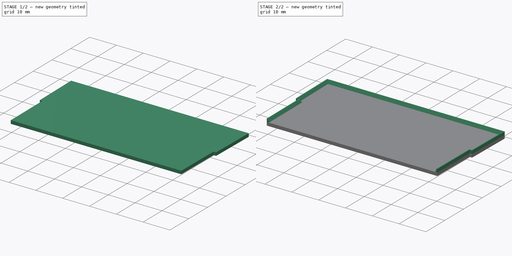
[diagram: build sequence overview — one tinted view per stage of 2, left to right]
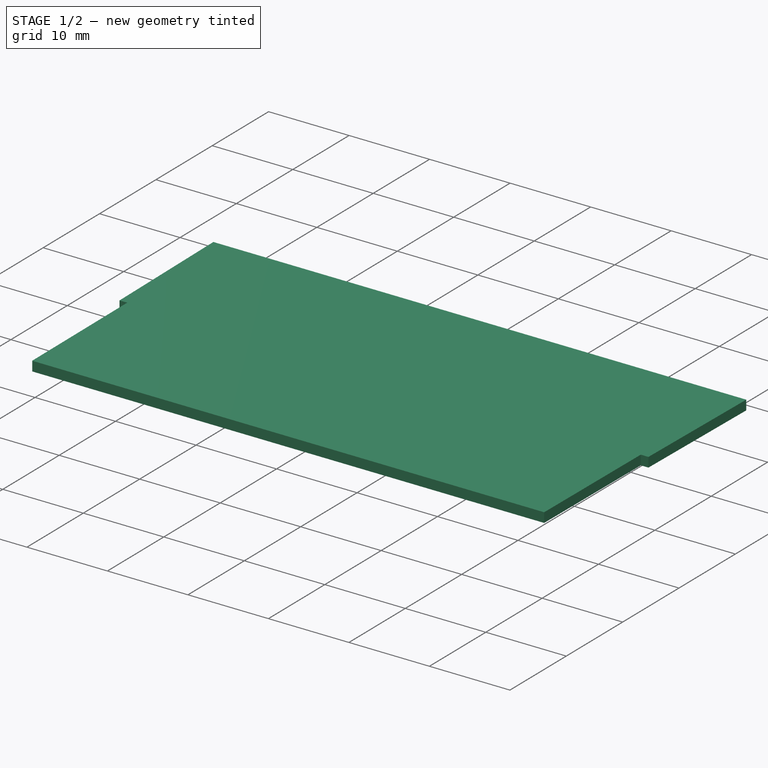
[diagram: stage 1 of 2 — iso view after this stage's code; geometry added in this stage tinted green]
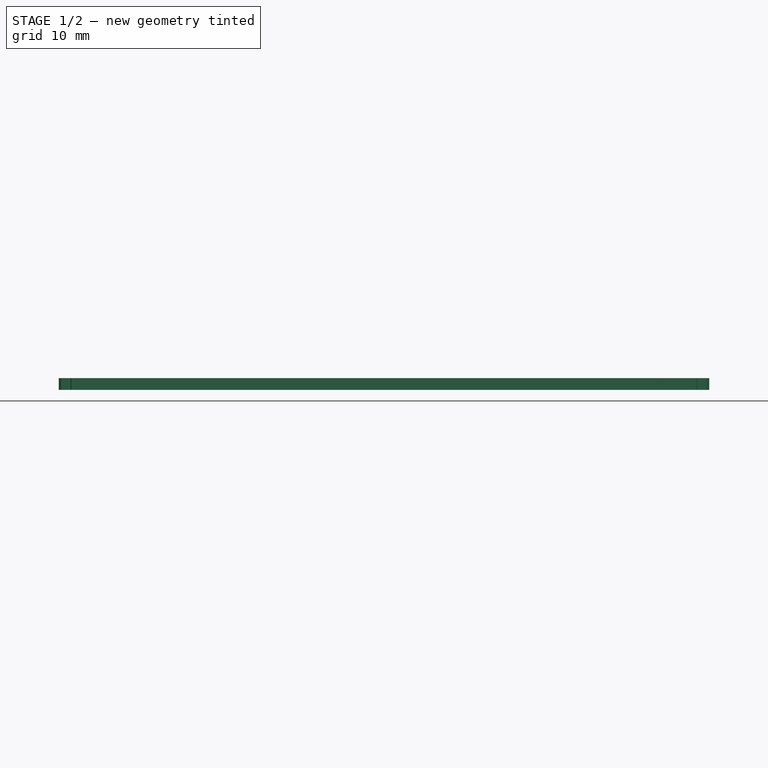
[diagram: stage 1 of 2 — front view after this stage's code; geometry added in this stage tinted green]
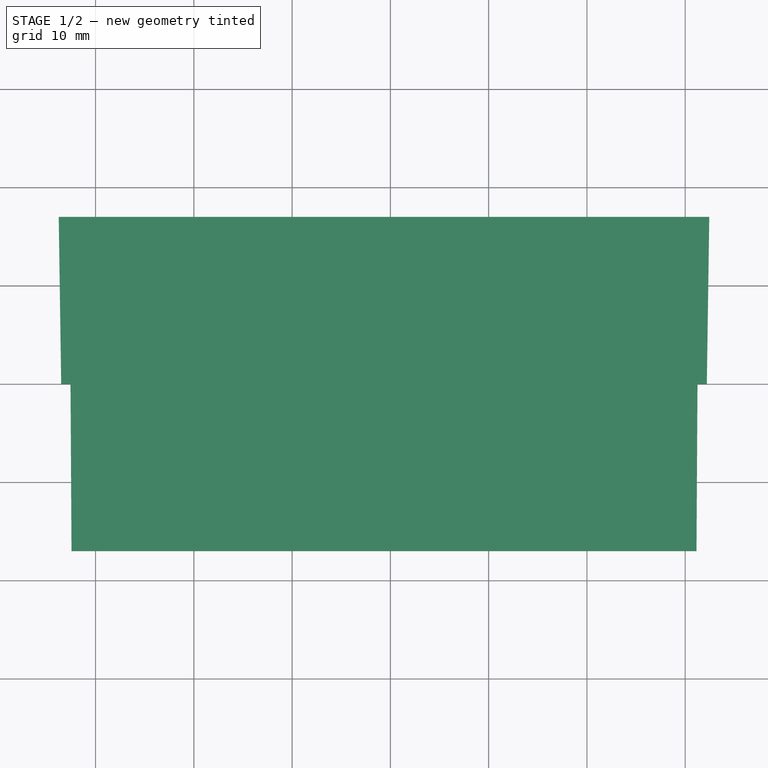
[diagram: stage 1 of 2 — top view after this stage's code; geometry added in this stage tinted green]
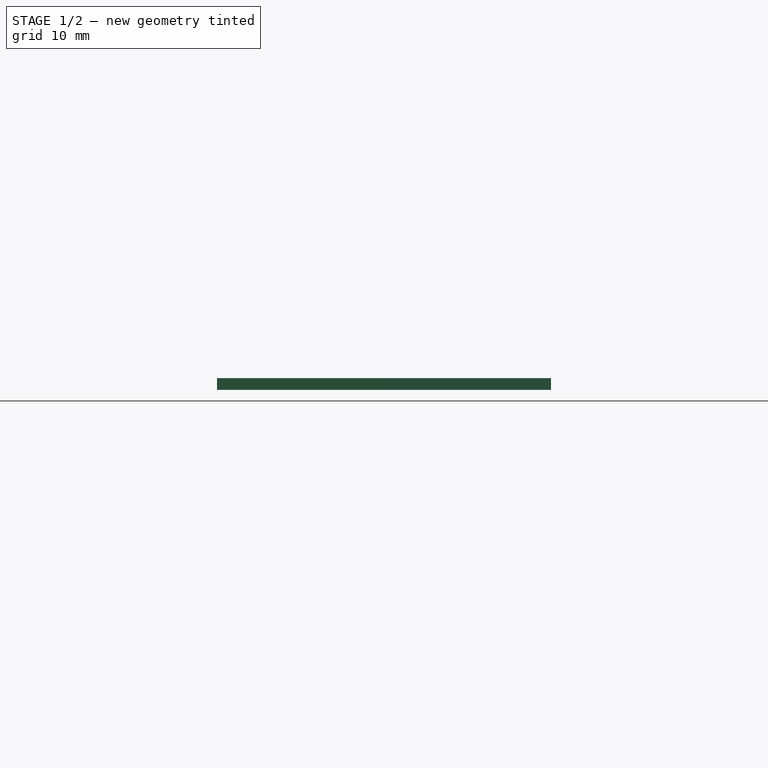
[diagram: stage 1 of 2 — right view after this stage's code; geometry added in this stage tinted green]
FCSTD DOCUMENT  (FreeCAD 1.0R39319 (Git))
Label: PartDrawerSeparator
License: All rights reserved
LicenseURL: https://en.wikipedia.org/wiki/All_rights_reserved
objects: Sketcher::SketchObject×3, PartDesign::Pad×1, PartDesign::AdditiveLoft×1, PartDesign::Body×1
note: 13 computed .brp shape members not serialized (recipe doc carries the construction recipe); baked Part::Feature solids carry a one-line shape summary decoded from their .brp

FEATURE [Sketcher::SketchObject] Sketch
  ArcFitTolerance = 1e-06
  AttachmentSupport = -> [XY_Plane]
  FullyConstrained = true
  MakeInternals = false
  MapMode = 5
  sketch-geometry (9):
    g0: LineSegment StartX=-32.45 StartY=-17 StartZ=0 EndX=31.15 EndY=-17 EndZ=0
    g1: LineSegment StartX=-32.45 StartY=-17 StartZ=0 EndX=-32.55 EndY=0 EndZ=0
    g2: LineSegment StartX=-32.55 StartY=0 StartZ=0 EndX=-33.5 EndY=0 EndZ=0
    g3: LineSegment StartX=-33.5 StartY=0 StartZ=0 EndX=-33.75 EndY=17 EndZ=0
    g4: LineSegment StartX=-33.75 StartY=17 StartZ=0 EndX=32.45 EndY=17 EndZ=0
    g5: LineSegment StartX=32.45 StartY=17 StartZ=0 EndX=32.2 EndY=0 EndZ=0
    g6: LineSegment StartX=32.2 StartY=5e-16 StartZ=0 EndX=31.25 EndY=5e-16 EndZ=0
    g7: LineSegment StartX=31.25 StartY=5e-16 StartZ=0 EndX=31.15 EndY=-17 EndZ=0
    g8: LineSegment [constr] StartX=-0.65 StartY=17 StartZ=0 EndX=-0.65 EndY=-17 EndZ=0
  constraints (25):
    c: Horizontal(g0)
    c: Coincident(g0,g1)
    c: Coincident(g1,g2)
    c: Horizontal(g2)
    c: Coincident(g2,g3)
    c: Coincident(g3,g4)
    c: Horizontal(g4)
    c: Coincident(g4,g5)
    c: Coincident(g5,g6)
    c: Horizontal(g6)
    c: Coincident(g6,g7)
    c: Coincident(g7,g0)
    c: Symmetric(g4,g4,g8)
    c: Symmetric(g0,g0,g8)
    c: Vertical(g8)
    c: Equal(g2,g6)
    c: Equal(g1,g7)
    c: DistanceX(g0,g0) = 63.6
    c: PointOnObject(g1,g6)
    c: DistanceX(g1,g6) = 63.8
    c: DistanceX(g2,g5) = 65.7
    c: DistanceX(g4,g4) = 66.2
    c: DistanceY(g0,g3) = 34
    c: DistanceY(g0,g2) = 17
    c: Symmetric(g0,g4,g-1)
FEATURE [PartDesign::Pad] Pad
  Direction = (0,0,1)
  Length = 1.2
  Length2 = 10
  Profile = -> Sketch
  ReferenceAxis = -> Sketch [N_Axis]
  Refine = true
  Suppressed = false
  Type = 0
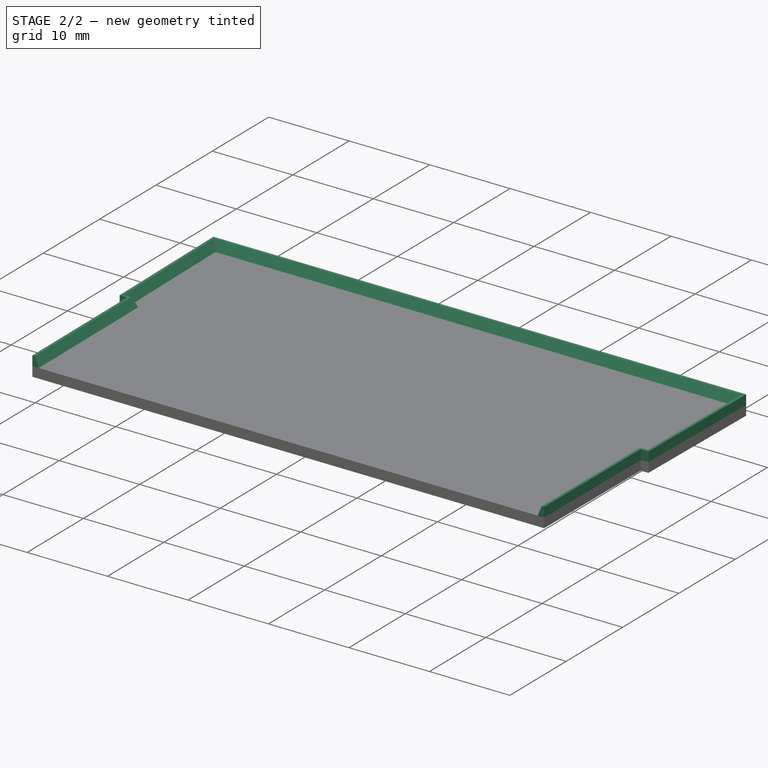
[diagram: stage 2 of 2 — iso view after this stage's code; geometry added in this stage tinted green]
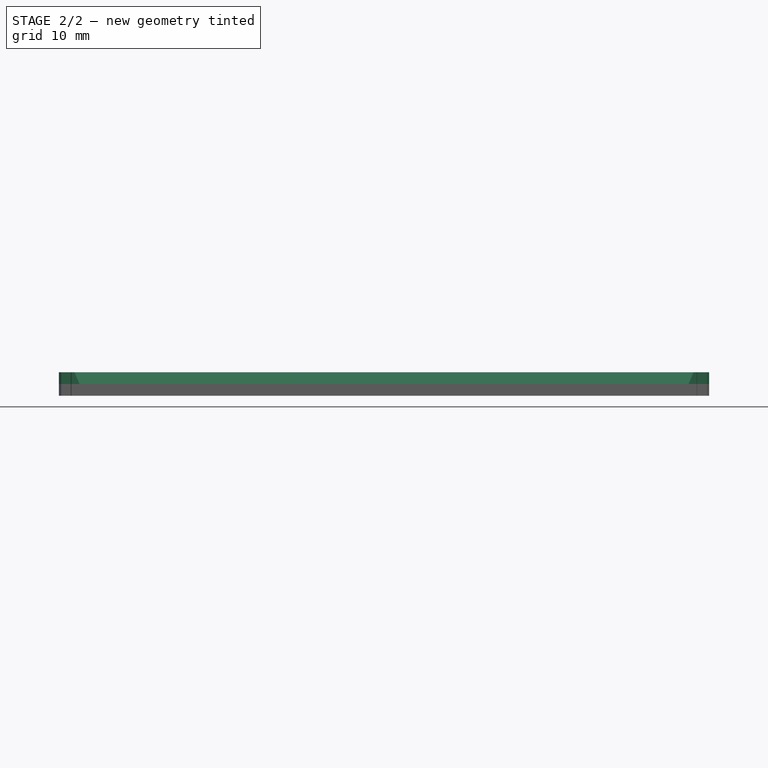
[diagram: stage 2 of 2 — front view after this stage's code; geometry added in this stage tinted green]
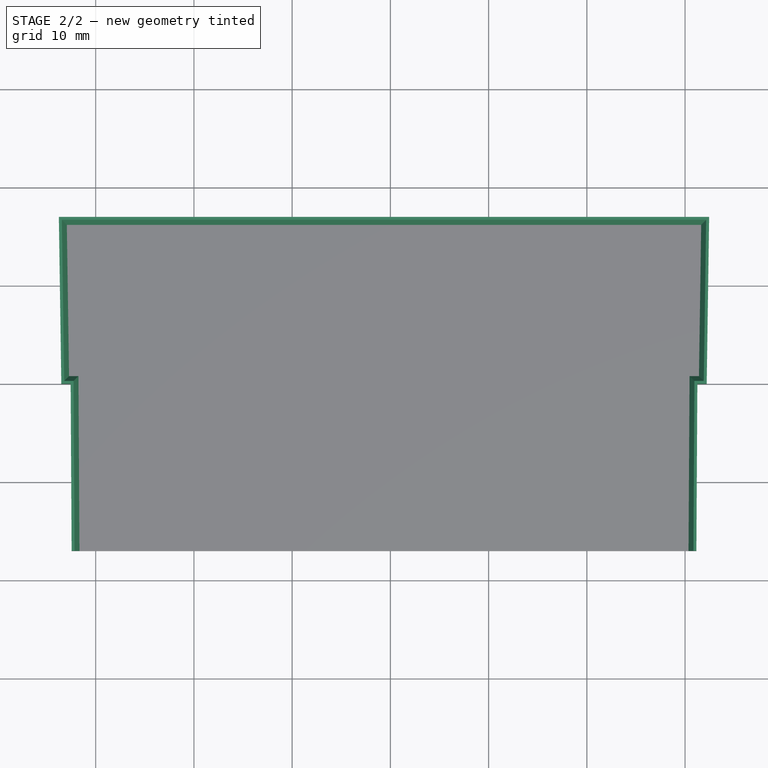
[diagram: stage 2 of 2 — top view after this stage's code; geometry added in this stage tinted green]
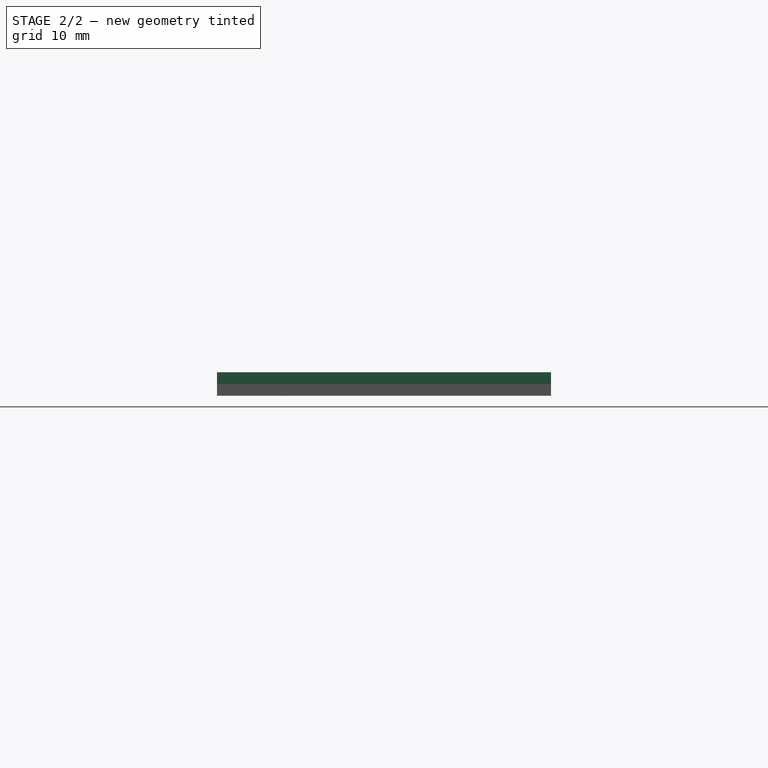
[diagram: stage 2 of 2 — right view after this stage's code; geometry added in this stage tinted green]
FEATURE [Sketcher::SketchObject] Sketch001
  ArcFitTolerance = 1e-06
  AttachmentOffset = pos=(0,0,1.2) rot=(0,0,1;0rad)
  AttachmentSupport = -> [XY_Plane]
  ExternalGeometry = -> [Sketch]
  FullyConstrained = true
  MakeInternals = false
  MapMode = 5
  Placement = pos=(0,0,1.2) rot=(0,0,1;0rad)
  expr: .AttachmentOffset.Base.z = <<Pad>>.Length
  sketch-geometry (22):
    g0: LineSegment StartX=32.45 StartY=17 StartZ=0 EndX=32.2 EndY=0 EndZ=0
    g1: LineSegment StartX=32.2 StartY=0 StartZ=0 EndX=31.25 EndY=5e-16 EndZ=0
    g2: LineSegment StartX=31.25 StartY=5e-16 StartZ=0 EndX=31.15 EndY=-17 EndZ=0
    g3: LineSegment StartX=-32.45 StartY=-17 StartZ=0 EndX=-32.55 EndY=0 EndZ=0
    g4: LineSegment StartX=-32.55 StartY=0 StartZ=0 EndX=-33.5 EndY=0 EndZ=0
    g5: LineSegment StartX=-33.5 StartY=0 StartZ=0 EndX=-33.75 EndY=17 EndZ=0
    g6: LineSegment StartX=30.35 StartY=-17 StartZ=0 EndX=30.4547 EndY=0.8 EndZ=0
    g7: LineSegment StartX=30.4547 StartY=0.8 StartZ=0 EndX=31.4117 EndY=0.8 EndZ=0
    g8: LineSegment StartX=31.4117 StartY=0.8 StartZ=0 EndX=31.6382 EndY=16.2001 EndZ=0
    g9: LineSegment StartX=-32.9382 StartY=16.2001 StartZ=0 EndX=-32.7117 EndY=0.8 EndZ=0
    g10: LineSegment StartX=-32.7117 StartY=0.8 StartZ=0 EndX=-31.7547 EndY=0.8 EndZ=0
    g11: LineSegment StartX=-31.7547 StartY=0.8 StartZ=0 EndX=-31.65 EndY=-17 EndZ=0
    g12: LineSegment [constr] StartX=-32.55 StartY=0 StartZ=0 EndX=-32.55 EndY=0.8 EndZ=0
    g13: LineSegment [constr] StartX=31.4117 StartY=0.8 StartZ=0 EndX=32.2116 EndY=0.788237 EndZ=0
    g14: LineSegment [constr] StartX=31.25 StartY=5e-16 StartZ=0 EndX=30.45 EndY=0.0047058 EndZ=0
    g15: LineSegment [constr] StartX=-31.75 StartY=0.0047058 StartZ=0 EndX=-32.55 EndY=0 EndZ=0
    g16: LineSegment [constr] StartX=-32.7117 StartY=0.8 StartZ=0 EndX=-33.5116 EndY=0.788237 EndZ=0
    g17: LineSegment StartX=-33.75 StartY=17 StartZ=0 EndX=32.45 EndY=17 EndZ=0
    g18: LineSegment StartX=30.35 StartY=-17 StartZ=0 EndX=31.15 EndY=-17 EndZ=0
    g19: LineSegment StartX=-32.45 StartY=-17 StartZ=0 EndX=-31.65 EndY=-17 EndZ=0
    g20: LineSegment StartX=-32.9382 StartY=16.2001 StartZ=0 EndX=31.6382 EndY=16.2001 EndZ=0
    g21: LineSegment [constr] StartX=-32.9382 StartY=16.2001 StartZ=0 EndX=-32.9499 EndY=17 EndZ=0
  constraints (58):
    c: Coincident(g0,g-9)
    c: Coincident(g0,g1)
    c: Coincident(g1,g-9)
    c: Coincident(g1,g2)
    c: Coincident(g2,g-7)
    c: Coincident(g3,g-10)
    c: Coincident(g3,g4)
    c: Coincident(g4,g-10)
    c: Coincident(g4,g5)
    c: Coincident(g6,g7)
    c: Horizontal(g7)
    c: Coincident(g7,g8)
    c: Coincident(g9,g10)
    c: Horizontal(g10)
    c: Coincident(g10,g11)
    c: Parallel(g11,g3)
    c: Parallel(g9,g5)
    c: Parallel(g8,g0)
    c: Parallel(g6,g2)
    c: Coincident(g12,g3)
    c: PointOnObject(g12,g10)
    c: Vertical(g12)
    c: PointOnObject(g13,g0)
    c: Coincident(g14,g1)
    c: PointOnObject(g14,g6)
    c: Coincident(g16,g9)
    c: PointOnObject(g16,g5)
    c: Perpendicular(g3,g15)
    c: Perpendicular(g5,g16)
    c: Perpendicular(g6,g14)
    c: PointOnObject(g6,g10)
    c: Perpendicular(g0,g13)
    c: Coincident(g0,g-8)
    c: Coincident(g13,g7)
    c: PointOnObject(g6,g-7)
    c: Coincident(g3,g-7)
    c: Coincident(g15,g3)
    c: PointOnObject(g15,g11)
    c: Coincident(g5,g-8)
    c: Coincident(g17,g0)
    c: Coincident(g18,g6)
    c: Coincident(g18,g2)
    c: PointOnObject(g11,g-7)
    c: Coincident(g19,g3)
    c: Coincident(g19,g11)
    c: Equal(g14,g13)
    c: Equal(g13,g16)
    c: Equal(g16,g12)
    c: Equal(g12,g15)
    c: Distance(g13) = 0.8
    c: Coincident(g17,g5)
    c: Coincident(g20,g9)
    c: Coincident(g20,g8)
    c: Horizontal(g20)
    c: Coincident(g21,g9)
    c: PointOnObject(g21,g17)
    c: Parallel(g9,g21)
    c: Equal(g15,g21)
FEATURE [Sketcher::SketchObject] Sketch002
  ArcFitTolerance = 1e-06
  AttachmentOffset = pos=(0,0,2.4) rot=(0,0,1;0rad)
  AttachmentSupport = -> [XY_Plane]
  ExternalGeometry = -> [Sketch]
  FullyConstrained = true
  MakeInternals = false
  MapMode = 5
  Placement = pos=(0,0,2.4) rot=(0,0,1;0rad)
  expr: .AttachmentOffset.Base.z = <<Pad>>.Length + 1.2 mm
  sketch-geometry (22):
    g0: LineSegment StartX=32.45 StartY=17 StartZ=0 EndX=32.2 EndY=0 EndZ=0
    g1: LineSegment StartX=32.2 StartY=0 StartZ=0 EndX=31.25 EndY=5e-16 EndZ=0
    g2: LineSegment StartX=31.25 StartY=5e-16 StartZ=0 EndX=31.15 EndY=-17 EndZ=0
    g3: LineSegment StartX=-32.45 StartY=-17 StartZ=0 EndX=-32.55 EndY=0 EndZ=0
    g4: LineSegment StartX=-32.55 StartY=0 StartZ=0 EndX=-33.5 EndY=0 EndZ=0
    g5: LineSegment StartX=-33.5 StartY=0 StartZ=0 EndX=-33.75 EndY=17 EndZ=0
    g6: LineSegment StartX=30.85 StartY=-17 StartZ=0 EndX=30.9518 EndY=0.3 EndZ=0
    g7: LineSegment StartX=30.9518 StartY=0.3 StartZ=0 EndX=31.9044 EndY=0.3 EndZ=0
    g8: LineSegment StartX=31.9044 StartY=0.3 StartZ=0 EndX=32.1456 EndY=16.7 EndZ=0
    g9: LineSegment StartX=-33.4456 StartY=16.7 StartZ=0 EndX=-33.2044 EndY=0.3 EndZ=0
    g10: LineSegment StartX=-33.2044 StartY=0.3 StartZ=0 EndX=-32.2518 EndY=0.3 EndZ=0
    g11: LineSegment StartX=-32.2518 StartY=0.3 StartZ=0 EndX=-32.15 EndY=-17 EndZ=0
    g12: LineSegment [constr] StartX=-32.55 StartY=0 StartZ=0 EndX=-32.55 EndY=0.3 EndZ=0
    g13: LineSegment [constr] StartX=31.9044 StartY=0.3 StartZ=0 EndX=32.2043 EndY=0.295589 EndZ=0
    g14: LineSegment [constr] StartX=31.25 StartY=5e-16 StartZ=0 EndX=30.95 EndY=0.00176468 EndZ=0
    g15: LineSegment [constr] StartX=-32.25 StartY=0.00176468 StartZ=0 EndX=-32.55 EndY=0 EndZ=0
    g16: LineSegment [constr] StartX=-33.2044 StartY=0.3 StartZ=0 EndX=-33.5043 EndY=0.295589 EndZ=0
    g17: LineSegment StartX=-33.75 StartY=17 StartZ=0 EndX=32.45 EndY=17 EndZ=0
    g18: LineSegment StartX=30.85 StartY=-17 StartZ=0 EndX=31.15 EndY=-17 EndZ=0
    g19: LineSegment StartX=-32.45 StartY=-17 StartZ=0 EndX=-32.15 EndY=-17 EndZ=0
    g20: LineSegment [constr] StartX=-33.4456 StartY=16.7 StartZ=0 EndX=-33.45 EndY=17 EndZ=0
    g21: LineSegment StartX=-33.4456 StartY=16.7 StartZ=0 EndX=32.1456 EndY=16.7 EndZ=0
  constraints (58):
    c: Coincident(g0,g-9)
    c: Coincident(g0,g1)
    c: Coincident(g1,g-9)
    c: Coincident(g1,g2)
    c: Coincident(g2,g-7)
    c: Coincident(g3,g-10)
    c: Coincident(g3,g4)
    c: Coincident(g4,g-10)
    c: Coincident(g4,g5)
    c: Coincident(g6,g7)
    c: Horizontal(g7)
    c: Coincident(g7,g8)
    c: Coincident(g9,g10)
    c: Horizontal(g10)
    c: Coincident(g10,g11)
    c: Parallel(g11,g3)
    c: Parallel(g9,g5)
    c: Parallel(g8,g0)
    c: Parallel(g6,g2)
    c: Coincident(g12,g3)
    c: PointOnObject(g12,g10)
    c: Vertical(g12)
    c: PointOnObject(g13,g0)
    c: Coincident(g14,g1)
    c: PointOnObject(g14,g6)
    c: Coincident(g16,g9)
    c: PointOnObject(g16,g5)
    c: Perpendicular(g3,g15)
    c: Perpendicular(g5,g16)
    c: Perpendicular(g6,g14)
    c: PointOnObject(g6,g10)
    c: Perpendicular(g0,g13)
    c: Coincident(g0,g-8)
    c: Coincident(g13,g7)
    c: PointOnObject(g6,g-7)
    c: Coincident(g3,g-7)
    c: Coincident(g15,g3)
    c: PointOnObject(g15,g11)
    c: Coincident(g5,g-8)
    c: Coincident(g17,g0)
    c: Coincident(g18,g6)
    c: Coincident(g18,g2)
    c: PointOnObject(g11,g-7)
    c: Coincident(g19,g3)
    c: Coincident(g19,g11)
    c: Equal(g14,g13)
    c: Equal(g13,g16)
    c: Equal(g16,g12)
    c: Equal(g12,g15)
    c: Distance(g13) = 0.3
    c: Coincident(g17,g5)
    c: Coincident(g20,g9)
    c: PointOnObject(g20,g17)
    c: Coincident(g21,g9)
    c: Coincident(g21,g8)
    c: Horizontal(g21)
    c: Parallel(g9,g20)
    c: Equal(g15,g20)
FEATURE [PartDesign::AdditiveLoft] AdditiveLoft
  BaseFeature = -> Pad
  Closed = false
  Profile = -> Sketch001
  Refine = true
  Ruled = false
  Sections = -> [Sketch002]
  Suppressed = false
FEATURE [PartDesign::Body] Body
  AllowCompound = false
  Group = -> [Sketch,Pad,Sketch001,Sketch002,AdditiveLoft]
  Origin = -> Origin
  Tip = -> AdditiveLoft
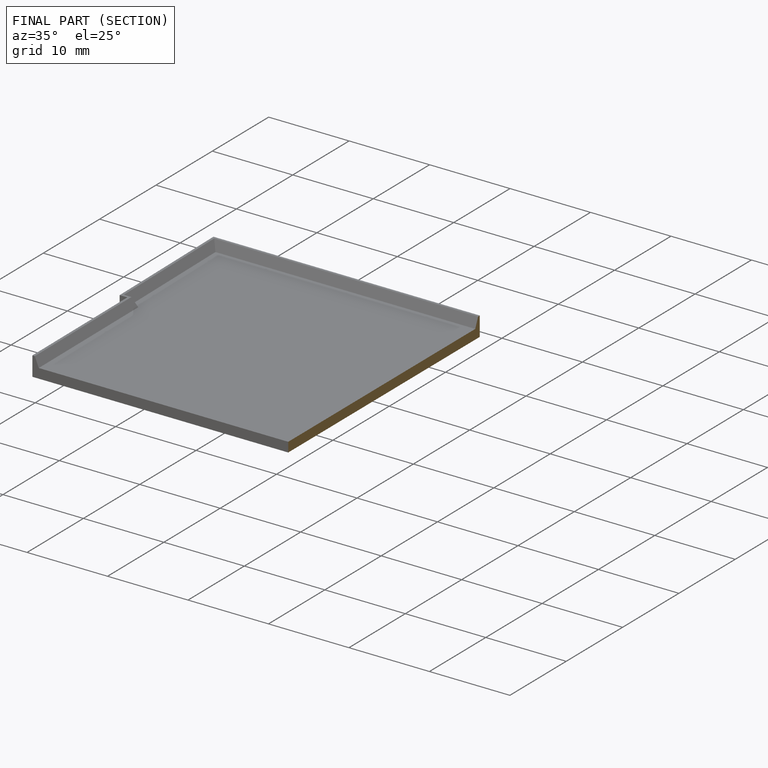
[diagram: finished part — half-section view (interior)]
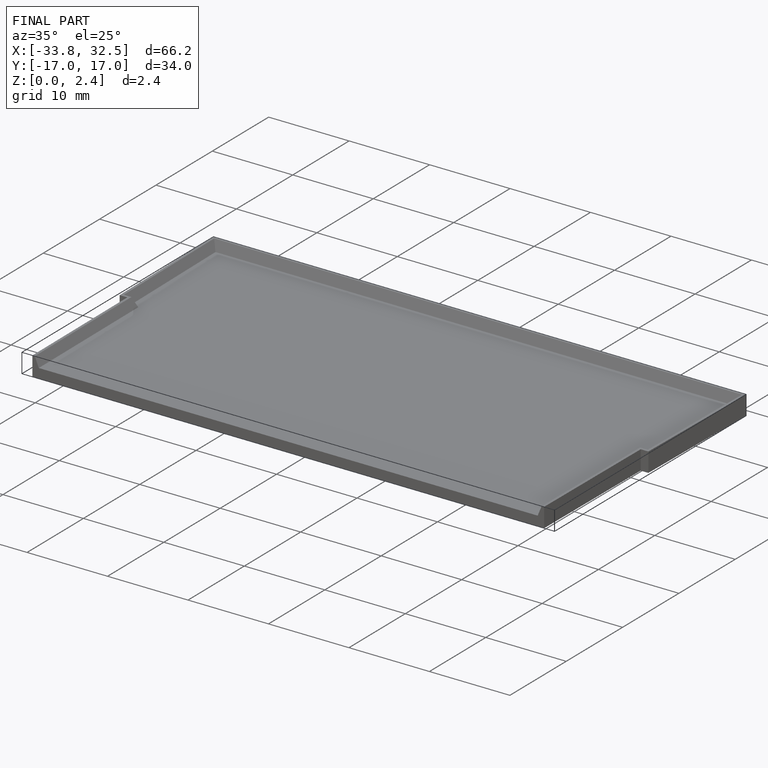
[diagram: finished part — iso view with bounding-box wireframe]
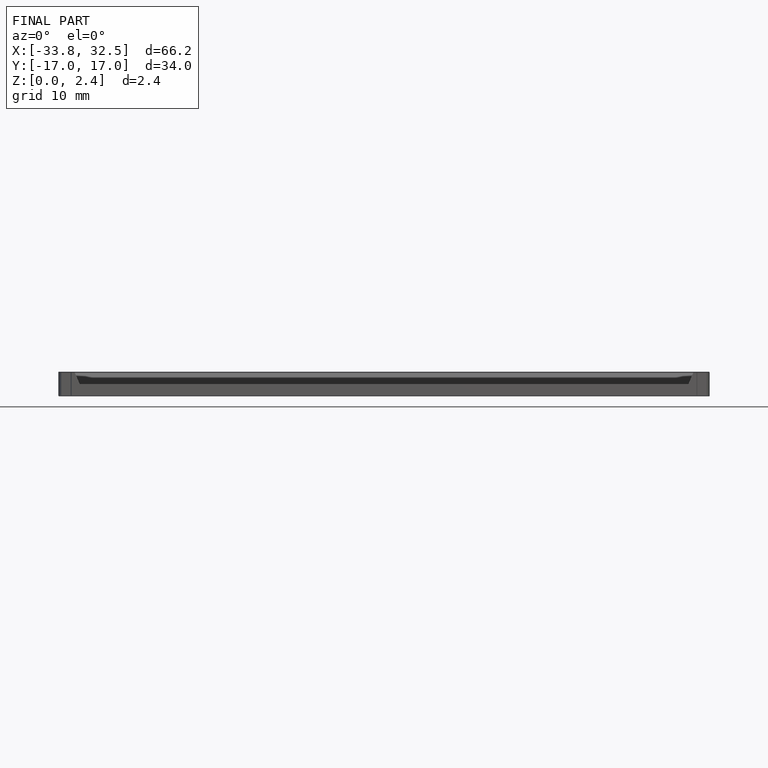
[diagram: finished part — front view with bounding-box wireframe]
